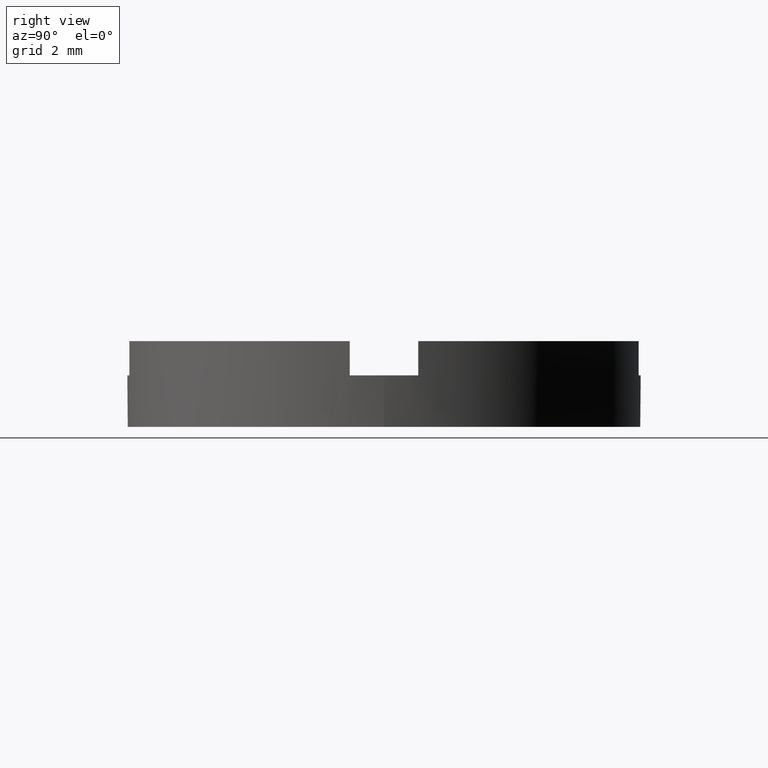
[diagram: clean part render]
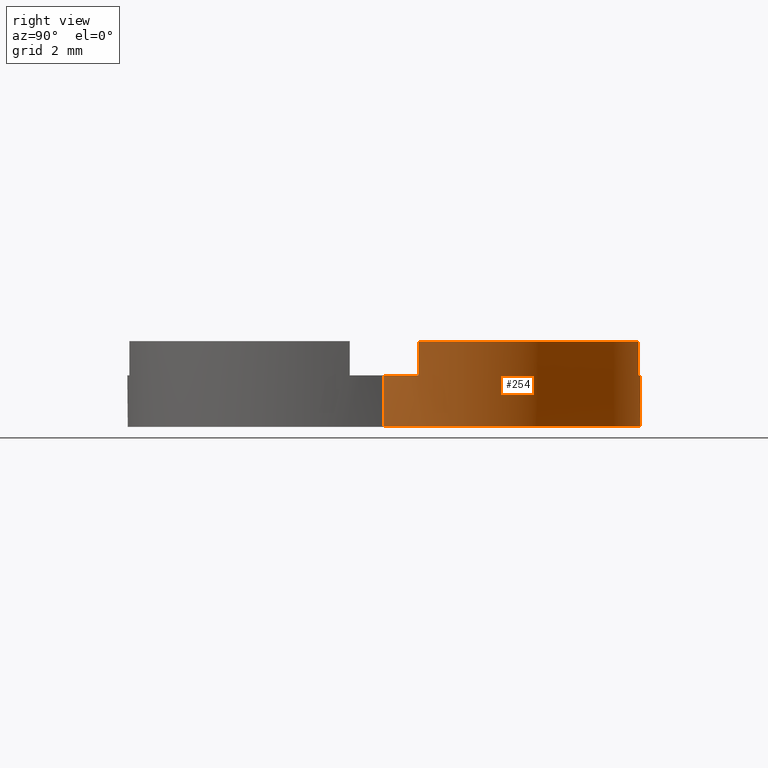
[diagram: same view with one face highlighted and labeled with its STEP entity id]
A machine part, right view. The second image highlights one B-rep face of the part: STEP entity #254.
In plain terms, the highlighted cylindrical surface (partial cylindrical patch) has radius 7.5 mm, axis along (-0, -0, -1).
Its self-contained STEP definition (entity closure, byte-faithful):
#17 = ORIENTED_EDGE ( 'NONE', *, *, #68, .F. ) ;
#18 = VECTOR ( 'NONE', #449, 1000.000000000000000 ) ;
#32 = VECTOR ( 'NONE', #227, 1000.000000000000000 ) ;
#36 = CARTESIAN_POINT ( 'NONE',  ( 0.000000000000000000, 0.000000000000000000, 2.500000000000000000 ) ) ;
#37 = VERTEX_POINT ( 'NONE', #518 ) ;
#42 = VERTEX_POINT ( 'NONE', #704 ) ;
#58 = CARTESIAN_POINT ( 'NONE',  ( 7.500000000000000000, 9.184850993605147944E-16, 0.000000000000000000 ) ) ;
#62 = VERTEX_POINT ( 'NONE', #432 ) ;
#68 = EDGE_CURVE ( 'NONE', #685, #541, #293, .T. ) ;
#73 = LINE ( 'NONE', #550, #332 ) ;
#94 = AXIS2_PLACEMENT_3D ( 'NONE', #431, #583, #476 ) ;
#102 = CIRCLE ( 'NONE', #302, 7.500000000000000000 ) ;
#106 = EDGE_CURVE ( 'NONE', #42, #157, #567, .T. ) ;
#107 = VECTOR ( 'NONE', #402, 1000.000000000000000 ) ;
#110 = LINE ( 'NONE', #569, #107 ) ;
#120 = VERTEX_POINT ( 'NONE', #453 ) ;
#135 = ORIENTED_EDGE ( 'NONE', *, *, #748, .F. ) ;
#145 = ORIENTED_EDGE ( 'NONE', *, *, #635, .T. ) ;
#150 = ORIENTED_EDGE ( 'NONE', *, *, #766, .F. ) ;
#152 = VERTEX_POINT ( 'NONE', #298 ) ;
#154 = ORIENTED_EDGE ( 'NONE', *, *, #286, .T. ) ;
#157 = VERTEX_POINT ( 'NONE', #451 ) ;
#165 = AXIS2_PLACEMENT_3D ( 'NONE', #204, #736, #452 ) ;
#181 = CARTESIAN_POINT ( 'NONE',  ( 7.433034373659256566, 0.9999999999999711342, 2.500000000000000000 ) ) ;
#182 = CARTESIAN_POINT ( 'NONE',  ( -7.500000000000000000, 0.000000000000000000, 2.500000000000000000 ) ) ;
#184 = DIRECTION ( 'NONE',  ( -0.000000000000000000, -0.000000000000000000, 1.000000000000000000 ) ) ;
#189 = AXIS2_PLACEMENT_3D ( 'NONE', #723, #515, #268 ) ;
#204 = CARTESIAN_POINT ( 'NONE',  ( 0.000000000000000000, 0.000000000000000000, 2.500000000000000000 ) ) ;
#209 = EDGE_CURVE ( 'NONE', #37, #292, #561, .T. ) ;
#215 = CARTESIAN_POINT ( 'NONE',  ( 0.000000000000000000, 0.000000000000000000, 1.500000000000000000 ) ) ;
#217 = CARTESIAN_POINT ( 'NONE',  ( 0.000000000000000000, 0.000000000000000000, 0.000000000000000000 ) ) ;
#227 = DIRECTION ( 'NONE',  ( -0.000000000000000000, -0.000000000000000000, -1.000000000000000000 ) ) ;
#231 = DIRECTION ( 'NONE',  ( -1.000000000000000000, 0.000000000000000000, 0.000000000000000000 ) ) ;
#235 = EDGE_CURVE ( 'NONE', #120, #42, #339, .T. ) ;
#244 = EDGE_CURVE ( 'NONE', #120, #62, #345, .T. ) ;
#245 = CARTESIAN_POINT ( 'NONE',  ( -7.500000000000000000, 0.000000000000000000, 0.000000000000000000 ) ) ;
#251 = DIRECTION ( 'NONE',  ( -0.000000000000000000, 0.000000000000000000, 1.000000000000000000 ) ) ;
#254 = ADVANCED_FACE ( 'NONE', ( #596 ), #600, .T. ) ;
#267 = CARTESIAN_POINT ( 'NONE',  ( -7.433034373659249461, 1.000000000000026645, 2.500000000000000000 ) ) ;
#268 = DIRECTION ( 'NONE',  ( 1.000000000000000000, 0.000000000000000000, 0.000000000000000000 ) ) ;
#285 = AXIS2_PLACEMENT_3D ( 'NONE', #217, #473, #771 ) ;
#286 = EDGE_CURVE ( 'NONE', #330, #541, #352, .T. ) ;
#291 = DIRECTION ( 'NONE',  ( -0.000000000000000000, -0.000000000000000000, -1.000000000000000000 ) ) ;
#292 = VERTEX_POINT ( 'NONE', #181 ) ;
#293 = LINE ( 'NONE', #182, #32 ) ;
#298 = CARTESIAN_POINT ( 'NONE',  ( 7.500000000000000000, 9.184850993605147944E-16, 1.500000000000000000 ) ) ;
#302 = AXIS2_PLACEMENT_3D ( 'NONE', #215, #251, #351 ) ;
#303 = ORIENTED_EDGE ( 'NONE', *, *, #707, .T. ) ;
#312 = CARTESIAN_POINT ( 'NONE',  ( 7.433034373659256566, 0.9999999999999711342, 1.500000000000000000 ) ) ;
#313 = ORIENTED_EDGE ( 'NONE', *, *, #394, .F. ) ;
#330 = VERTEX_POINT ( 'NONE', #58 ) ;
#332 = VECTOR ( 'NONE', #291, 1000.000000000000000 ) ;
#339 = CIRCLE ( 'NONE', #189, 7.500000000000000000 ) ;
#345 = LINE ( 'NONE', #510, #606 ) ;
#347 = CIRCLE ( 'NONE', #94, 7.500000000000000000 ) ;
#351 = DIRECTION ( 'NONE',  ( 1.000000000000000000, 0.000000000000000000, 0.000000000000000000 ) ) ;
#352 = CIRCLE ( 'NONE', #285, 7.500000000000000000 ) ;
#353 = CIRCLE ( 'NONE', #165, 7.500000000000000000 ) ;
#394 = EDGE_CURVE ( 'NONE', #152, #37, #347, .T. ) ;
#402 = DIRECTION ( 'NONE',  ( -0.000000000000000000, -0.000000000000000000, 1.000000000000000000 ) ) ;
#421 = VERTEX_POINT ( 'NONE', #267 ) ;
#423 = CARTESIAN_POINT ( 'NONE',  ( 0.000000000000000000, 0.000000000000000000, 2.500000000000000000 ) ) ;
#428 = DIRECTION ( 'NONE',  ( -0.000000000000000000, -0.000000000000000000, -1.000000000000000000 ) ) ;
#431 = CARTESIAN_POINT ( 'NONE',  ( 0.000000000000000000, 0.000000000000000000, 1.500000000000000000 ) ) ;
#432 = CARTESIAN_POINT ( 'NONE',  ( 1.000000000000001332, 7.433034373659253013, 2.500000000000000000 ) ) ;
#449 = DIRECTION ( 'NONE',  ( -0.000000000000000000, -0.000000000000000000, 1.000000000000000000 ) ) ;
#451 = CARTESIAN_POINT ( 'NONE',  ( -0.9999999999999986677, 7.433034373659253013, 2.500000000000000000 ) ) ;
#452 = DIRECTION ( 'NONE',  ( 1.000000000000000000, 0.000000000000000000, 0.000000000000000000 ) ) ;
#453 = CARTESIAN_POINT ( 'NONE',  ( 1.000000000000001332, 7.433034373659253013, 1.500000000000000000 ) ) ;
#455 = CARTESIAN_POINT ( 'NONE',  ( -7.500000000000000000, 0.000000000000000000, 1.500000000000000000 ) ) ;
#473 = DIRECTION ( 'NONE',  ( 0.000000000000000000, 0.000000000000000000, 1.000000000000000000 ) ) ;
#476 = DIRECTION ( 'NONE',  ( 1.000000000000000000, 0.000000000000000000, 0.000000000000000000 ) ) ;
#500 = DIRECTION ( 'NONE',  ( -0.000000000000000000, -0.000000000000000000, 1.000000000000000000 ) ) ;
#510 = CARTESIAN_POINT ( 'NONE',  ( 1.000000000000001332, 7.433034373659253013, 1.500000000000000000 ) ) ;
#512 = DIRECTION ( 'NONE',  ( 0.000000000000000000, 0.000000000000000000, 1.000000000000000000 ) ) ;
#515 = DIRECTION ( 'NONE',  ( -0.000000000000000000, 0.000000000000000000, 1.000000000000000000 ) ) ;
#516 = DIRECTION ( 'NONE',  ( 1.000000000000000000, 0.000000000000000000, 0.000000000000000000 ) ) ;
#518 = CARTESIAN_POINT ( 'NONE',  ( 7.433034373659256566, 0.9999999999999711342, 1.500000000000000000 ) ) ;
#520 = CARTESIAN_POINT ( 'NONE',  ( -7.433034373659249461, 1.000000000000026645, 1.500000000000000000 ) ) ;
#541 = VERTEX_POINT ( 'NONE', #245 ) ;
#544 = ORIENTED_EDGE ( 'NONE', *, *, #235, .F. ) ;
#550 = CARTESIAN_POINT ( 'NONE',  ( 7.500000000000000000, 9.184850993605147944E-16, 2.500000000000000000 ) ) ;
#561 = LINE ( 'NONE', #312, #18 ) ;
#567 = LINE ( 'NONE', #641, #570 ) ;
#569 = CARTESIAN_POINT ( 'NONE',  ( -7.433034373659249461, 1.000000000000026645, 1.500000000000000000 ) ) ;
#570 = VECTOR ( 'NONE', #500, 1000.000000000000000 ) ;
#580 = ORIENTED_EDGE ( 'NONE', *, *, #209, .F. ) ;
#583 = DIRECTION ( 'NONE',  ( -0.000000000000000000, 0.000000000000000000, 1.000000000000000000 ) ) ;
#596 = FACE_OUTER_BOUND ( 'NONE', #678, .T. ) ;
#597 = ORIENTED_EDGE ( 'NONE', *, *, #244, .T. ) ;
#600 = CYLINDRICAL_SURFACE ( 'NONE', #710, 7.500000000000000000 ) ;
#606 = VECTOR ( 'NONE', #184, 1000.000000000000000 ) ;
#609 = EDGE_CURVE ( 'NONE', #292, #62, #353, .T. ) ;
#635 = EDGE_CURVE ( 'NONE', #152, #330, #73, .T. ) ;
#641 = CARTESIAN_POINT ( 'NONE',  ( -0.9999999999999986677, 7.433034373659253013, 1.500000000000000000 ) ) ;
#642 = CIRCLE ( 'NONE', #686, 7.500000000000000000 ) ;
#655 = ORIENTED_EDGE ( 'NONE', *, *, #106, .F. ) ;
#657 = VERTEX_POINT ( 'NONE', #520 ) ;
#663 = ORIENTED_EDGE ( 'NONE', *, *, #609, .F. ) ;
#678 = EDGE_LOOP ( 'NONE', ( #313, #145, #154, #17, #150, #303, #135, #655, #544, #597, #663, #580 ) ) ;
#685 = VERTEX_POINT ( 'NONE', #455 ) ;
#686 = AXIS2_PLACEMENT_3D ( 'NONE', #423, #512, #516 ) ;
#704 = CARTESIAN_POINT ( 'NONE',  ( -0.9999999999999986677, 7.433034373659253013, 1.500000000000000000 ) ) ;
#707 = EDGE_CURVE ( 'NONE', #657, #421, #110, .T. ) ;
#710 = AXIS2_PLACEMENT_3D ( 'NONE', #36, #428, #231 ) ;
#723 = CARTESIAN_POINT ( 'NONE',  ( 0.000000000000000000, 0.000000000000000000, 1.500000000000000000 ) ) ;
#736 = DIRECTION ( 'NONE',  ( 0.000000000000000000, 0.000000000000000000, 1.000000000000000000 ) ) ;
#748 = EDGE_CURVE ( 'NONE', #157, #421, #642, .T. ) ;
#766 = EDGE_CURVE ( 'NONE', #657, #685, #102, .T. ) ;
#771 = DIRECTION ( 'NONE',  ( 1.000000000000000000, 0.000000000000000000, 0.000000000000000000 ) ) ;